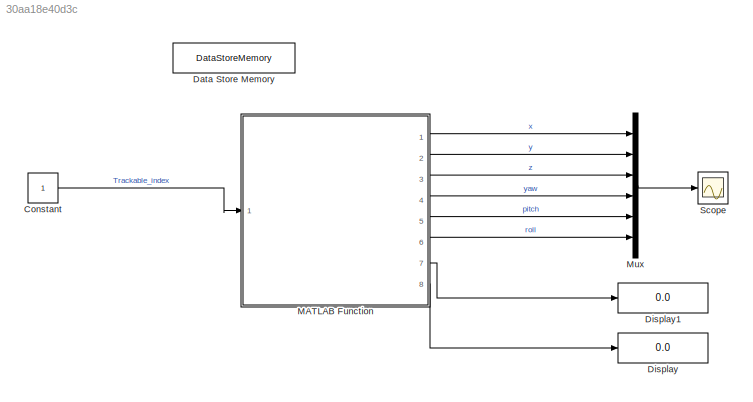
MODEL slx_30aa18e40d3c
KIND model
BLOCK [Constant] Constant
  OutDataTypeStr = Inherit: Inherit via back propagation
BLOCK [DataStoreMemory] Data Store Memory
  DataStoreName = old_TimeStamp
  OutDataTypeStr = double
  ReadBeforeWriteMsg = warning
  SignalType = real
  WriteAfterReadMsg = warning
  WriteAfterWriteMsg = warning
BLOCK [Display] Display
  Decimation = 1
  Ports = [1]
BLOCK [Display] Display1
  Decimation = 1
  Ports = [1]
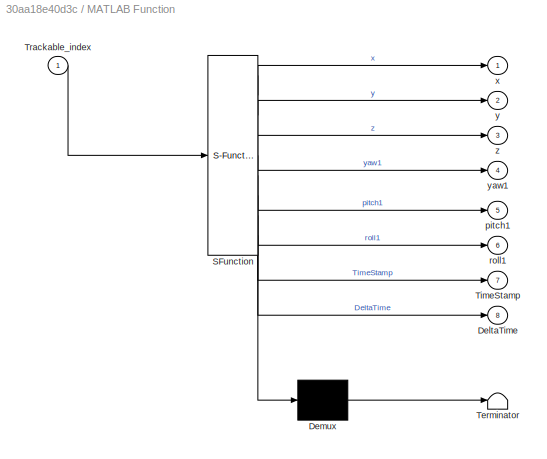
BLOCK [SubSystem] MATLAB Function
  ErrorFcn = Stateflow.Translate.translate
  PermitHierarchicalResolution = ExplicitOnly
  Ports = [1, 8]
  RequestExecContextInheritance = off
  SFBlockType = MATLAB Function
  TreatAsAtomicUnit = on
BLOCK [Demux] MATLAB Function/ Demux 
  Outputs = 1
  Ports = [1, 1]
BLOCK [S-Function] MATLAB Function/ SFunction 
  EnableBusSupport = on
  FunctionName = sf_sfun
  PortCounts = [1 9]
  Ports = [1, 9]
  Tag = Stateflow S-Function Optitrack_Simulink_TrackableLocation 2
BLOCK [Terminator] MATLAB Function/ Terminator 
BLOCK [Outport] MATLAB Function/DeltaTime
  IconDisplay = Port number
  Port = 8
BLOCK [Outport] MATLAB Function/TimeStamp
  IconDisplay = Port number
  Port = 7
BLOCK [Inport] MATLAB Function/Trackable_index
  IconDisplay = Port number
BLOCK [Outport] MATLAB Function/pitch1
  IconDisplay = Port number
  Port = 5
BLOCK [Outport] MATLAB Function/roll1
  IconDisplay = Port number
  Port = 6
BLOCK [Outport] MATLAB Function/x
  IconDisplay = Port number
BLOCK [Outport] MATLAB Function/y
  IconDisplay = Port number
  Port = 2
BLOCK [Outport] MATLAB Function/yaw1
  IconDisplay = Port number
  Port = 4
BLOCK [Outport] MATLAB Function/z
  IconDisplay = Port number
  Port = 3
BLOCK [Mux] Mux
  DisplayOption = bar
  Inputs = 6
  Ports = [6, 1]
BLOCK [Scope] Scope
  Floating = off
  NumInputPorts = 1
  Ports = [1]
  ShowLegends = off
LINE Constant:1 -> MATLAB Function:1
LINE MATLAB Function:1 -> Mux:1
LINE MATLAB Function:2 -> Mux:2
LINE MATLAB Function:3 -> Mux:3
LINE MATLAB Function:4 -> Mux:4
LINE MATLAB Function:5 -> Mux:5
LINE MATLAB Function:6 -> Mux:6
LINE MATLAB Function:7 -> Display1:1
LINE MATLAB Function:8 -> Display:1
LINE Mux:1 -> Scope:1
